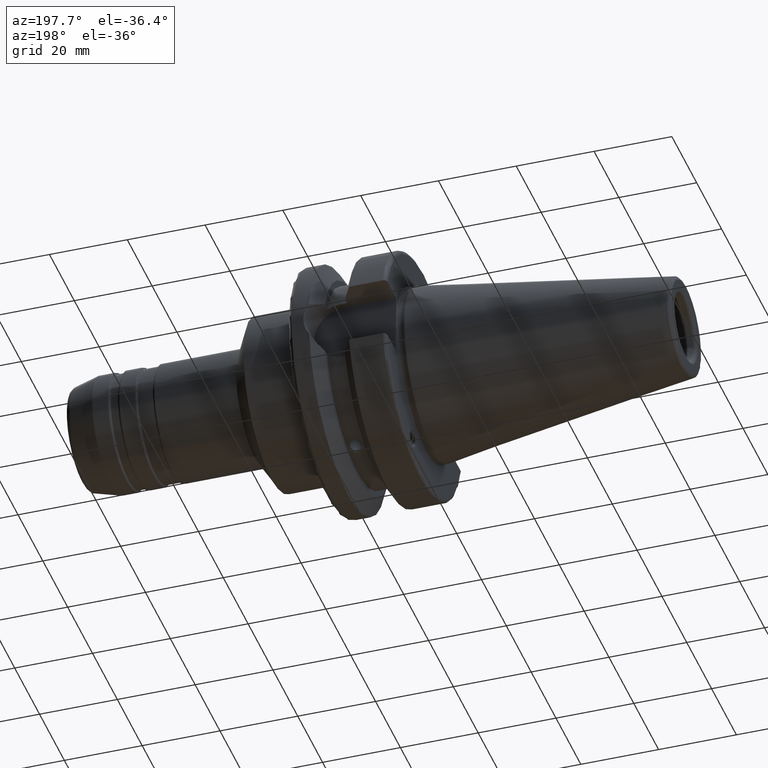
[diagram: clean part render]
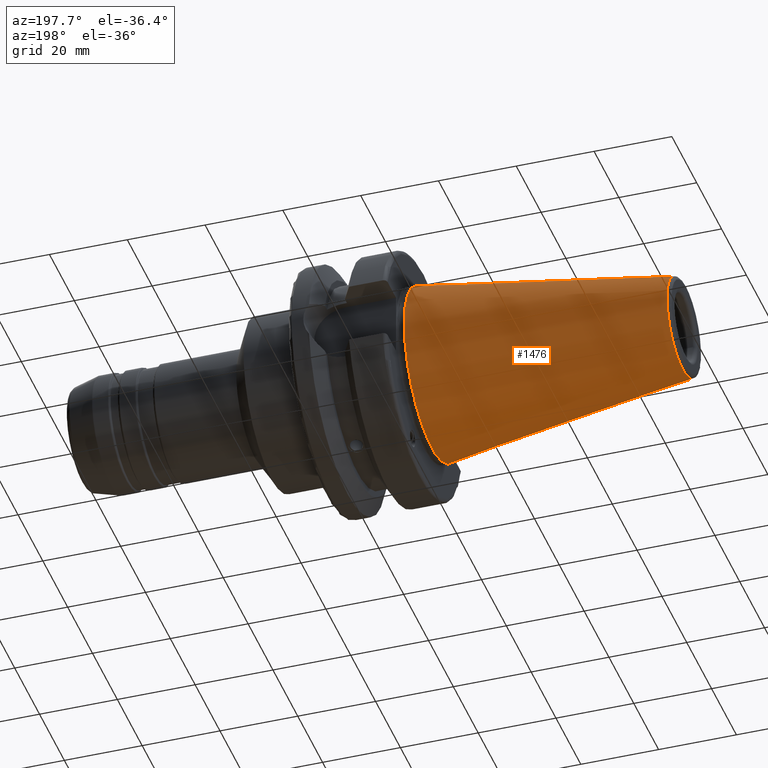
[diagram: same view with one face highlighted and labeled with its STEP entity id]
A machine part, auxiliary view. The second image highlights one B-rep face of the part: STEP entity #1476.
In plain terms, the highlighted conical surface has half-angle 8.297 deg.
Its self-contained STEP definition (entity closure, byte-faithful):
#131=CONICAL_SURFACE('',#1692,17.5186442890469,0.144812498238939);
#212=FACE_OUTER_BOUND('',#314,.T.);
#314=EDGE_LOOP('',(#1301,#1302,#1303,#1304,#1305));
#400=LINE('',#2864,#473);
#473=VECTOR('',#2155,17.5186442890469);
#558=CIRCLE('',#1689,12.8122885780937);
#559=CIRCLE('',#1690,12.8122885780937);
#561=CIRCLE('',#1693,22.225);
#703=VERTEX_POINT('',#2856);
#704=VERTEX_POINT('',#2857);
#705=VERTEX_POINT('',#2862);
#909=EDGE_CURVE('',#703,#704,#558,.T.);
#910=EDGE_CURVE('',#704,#703,#559,.T.);
#912=EDGE_CURVE('',#705,#705,#561,.T.);
#913=EDGE_CURVE('',#705,#703,#400,.T.);
#1301=ORIENTED_EDGE('',*,*,#912,.F.);
#1302=ORIENTED_EDGE('',*,*,#913,.T.);
#1303=ORIENTED_EDGE('',*,*,#909,.T.);
#1304=ORIENTED_EDGE('',*,*,#910,.T.);
#1305=ORIENTED_EDGE('',*,*,#913,.F.);
#1476=ADVANCED_FACE('',(#212),#131,.T.);
#1689=AXIS2_PLACEMENT_3D('',#2858,#2145,#2146);
#1690=AXIS2_PLACEMENT_3D('',#2859,#2147,#2148);
#1692=AXIS2_PLACEMENT_3D('',#2861,#2151,#2152);
#1693=AXIS2_PLACEMENT_3D('',#2863,#2153,#2154);
#2145=DIRECTION('center_axis',(1.,0.,0.));
#2146=DIRECTION('ref_axis',(0.,0.,-1.));
#2147=DIRECTION('center_axis',(1.,0.,0.));
#2148=DIRECTION('ref_axis',(0.,0.,-1.));
#2151=DIRECTION('center_axis',(1.,0.,0.));
#2152=DIRECTION('ref_axis',(0.,1.,0.));
#2153=DIRECTION('center_axis',(1.,0.,0.));
#2154=DIRECTION('ref_axis',(0.,0.,-1.));
#2155=DIRECTION('',(-0.989532981063281,0.144306893071729,1.76724974695192E-17));
#2856=CARTESIAN_POINT('',(-64.5443068930717,-12.8122885780937,-1.56905281969147E-15));
#2857=CARTESIAN_POINT('',(-64.5443068930717,-1.56905281969147E-15,12.8122885780937));
#2858=CARTESIAN_POINT('Origin',(-64.5443068930717,0.,0.));
#2859=CARTESIAN_POINT('Origin',(-64.5443068930717,0.,0.));
#2861=CARTESIAN_POINT('Origin',(-32.2721534465359,0.,0.));
#2862=CARTESIAN_POINT('',(4.44089209850063E-15,-22.225,-2.72177751110499E-15));
#2863=CARTESIAN_POINT('Origin',(0.,0.,0.));
#2864=CARTESIAN_POINT('',(-32.2721534465359,-17.5186442890469,-2.14541516539823E-15));